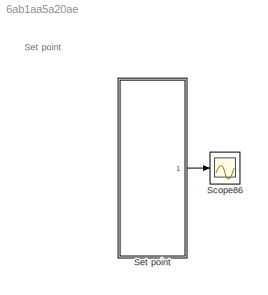
MODEL slx_6ab1aa5a20ae
KIND model
CONFIG AbsTol = auto
CONFIG EnableMultiTasking = off
CONFIG FixedStep = 0.01
CONFIG MaxStep = auto
CONFIG MinStep = auto
CONFIG RelTol = 1e-3
CONFIG SampleTimeConstraint = Unconstrained
CONFIG SolverName = FixedStepAuto
CONFIG StartTime = 0.0
CONFIG StopTime = 15
BLOCK [Scope] Scope86
  Floating = off
  NumInputPorts = 1
  Ports = [1]
  ScopeSpecificationString = Simulink.scopes.TimeScopeBlockCfg('CurrentConfiguration', extmgr.ConfigurationSet(extmgr.Configuration('Core','General UI',true,'FigureColor',[1 1 1]),extmgr.Configuration('Core','Source UI',true),extmgr.Configuration('Sources','WiredSimulink',true,'DataLogging',true,'DataLoggingSaveFormat','StructureWithTime'),extmgr.Configuration('Visuals','Time Domain',true,'SerializedDisplays',{struct('MinYLim...<+2069ch>
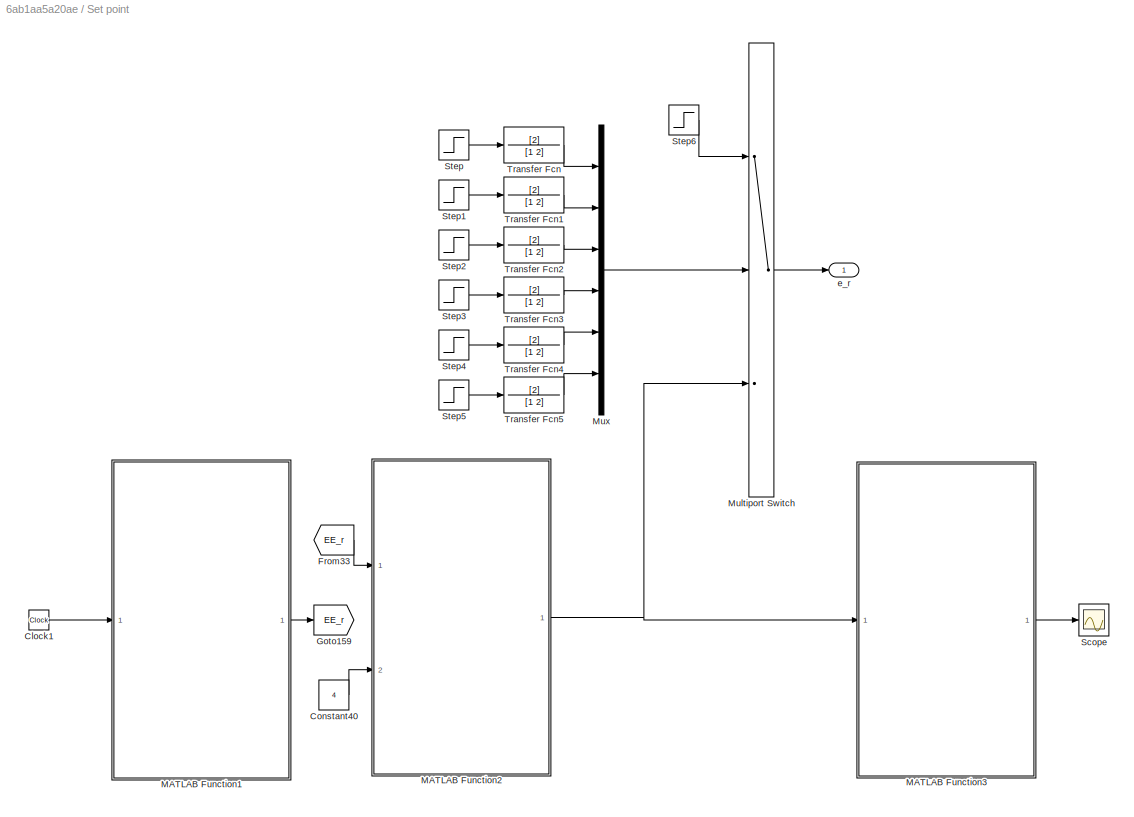
BLOCK [SubSystem] Set point
  Ports = [0, 1]
  RequestExecContextInheritance = off
BLOCK [Clock] Set point/Clock1
BLOCK [Constant] Set point/Constant40
  Value = 4
BLOCK [From] Set point/From33
  GotoTag = EE_r
BLOCK [Goto] Set point/Goto159
  GotoTag = EE_r
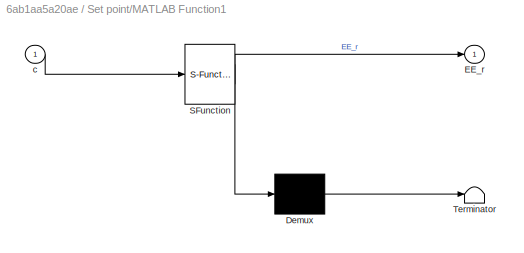
BLOCK [SubSystem] Set point/MATLAB Function1
  ErrorFcn = Stateflow.Translate.translate
  PermitHierarchicalResolution = ExplicitOnly
  Ports = [1, 1]
  RequestExecContextInheritance = off
  SFBlockType = MATLAB Function
  TreatAsAtomicUnit = on
BLOCK [Demux] Set point/MATLAB Function1/ Demux 
  Outputs = 1
  Ports = [1, 1]
BLOCK [S-Function] Set point/MATLAB Function1/ SFunction 
  EnableBusSupport = on
  FunctionName = sf_sfun
  PortCounts = [1 2]
  Ports = [1, 2]
  SFcnIsStateOwnerBlock = off
  SFunctionDeploymentMode = off
  Tag = Stateflow S-Function 18
BLOCK [Terminator] Set point/MATLAB Function1/ Terminator 
BLOCK [Outport] Set point/MATLAB Function1/EE_r
  VectorParamsAs1DForOutWhenUnconnected = off
BLOCK [Inport] Set point/MATLAB Function1/c
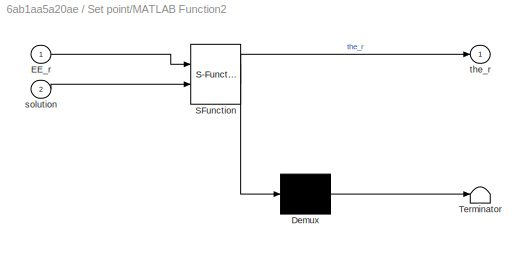
BLOCK [SubSystem] Set point/MATLAB Function2
  ErrorFcn = Stateflow.Translate.translate
  PermitHierarchicalResolution = ExplicitOnly
  Ports = [2, 1]
  RequestExecContextInheritance = off
  SFBlockType = MATLAB Function
  TreatAsAtomicUnit = on
BLOCK [Demux] Set point/MATLAB Function2/ Demux 
  Outputs = 1
  Ports = [1, 1]
BLOCK [S-Function] Set point/MATLAB Function2/ SFunction 
  EnableBusSupport = on
  FunctionName = sf_sfun
  PortCounts = [2 2]
  Ports = [2, 2]
  SFcnIsStateOwnerBlock = off
  SFunctionDeploymentMode = off
  Tag = Stateflow S-Function 20
BLOCK [Terminator] Set point/MATLAB Function2/ Terminator 
BLOCK [Inport] Set point/MATLAB Function2/EE_r
BLOCK [Inport] Set point/MATLAB Function2/solution
  Port = 2
BLOCK [Outport] Set point/MATLAB Function2/the_r
  VectorParamsAs1DForOutWhenUnconnected = off
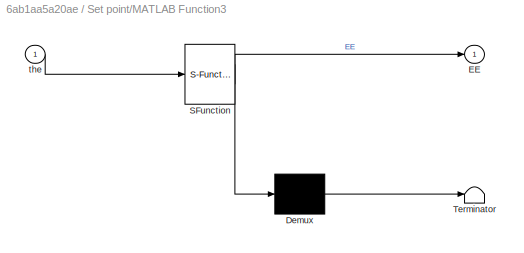
BLOCK [SubSystem] Set point/MATLAB Function3
  ErrorFcn = Stateflow.Translate.translate
  PermitHierarchicalResolution = ExplicitOnly
  Ports = [1, 1]
  RequestExecContextInheritance = off
  SFBlockType = MATLAB Function
  TreatAsAtomicUnit = on
BLOCK [Demux] Set point/MATLAB Function3/ Demux 
  Outputs = 1
  Ports = [1, 1]
BLOCK [S-Function] Set point/MATLAB Function3/ SFunction 
  EnableBusSupport = on
  FunctionName = sf_sfun
  PortCounts = [1 2]
  Ports = [1, 2]
  SFcnIsStateOwnerBlock = off
  SFunctionDeploymentMode = off
  Tag = Stateflow S-Function 21
BLOCK [Terminator] Set point/MATLAB Function3/ Terminator 
BLOCK [Outport] Set point/MATLAB Function3/EE
  VectorParamsAs1DForOutWhenUnconnected = off
BLOCK [Inport] Set point/MATLAB Function3/the
BLOCK [MultiPortSwitch] Set point/Multiport Switch
  InputSameDT = off
  Inputs = 2
  Ports = [3, 1]
  SaturateOnIntegerOverflow = off
BLOCK [Mux] Set point/Mux
  DisplayOption = bar
  Inputs = 6
  Ports = [6, 1]
BLOCK [Scope] Set point/Scope
  Floating = off
  NumInputPorts = 1
  Ports = [1]
  ScopeSpecificationString = Simulink.scopes.TimeScopeBlockCfg('CurrentConfiguration', extmgr.ConfigurationSet(extmgr.Configuration('Core','General UI',true),extmgr.Configuration('Core','Source UI',true),extmgr.Configuration('Sources','WiredSimulink',true,'DataLoggingVariableName','ScopeData1'),extmgr.Configuration('Visuals','Time Domain',true,'SerializedDisplays',{struct('MinYLimReal','-255.625','MaxYLimReal','800.625','YLab...<+1653ch>
BLOCK [Step] Set point/Step
  After = -0.052484081297928
  SampleTime = 0
  Time = 0
BLOCK [Step] Set point/Step1
  After = 0.010485739849624
  SampleTime = 0
  Time = 0
BLOCK [Step] Set point/Step2
  After = 0.105112260434987
  SampleTime = 0
  Time = 0
BLOCK [Step] Set point/Step3
  After = -0.509342931142206
  SampleTime = 0
  Time = 0
BLOCK [Step] Set point/Step4
  After = -0.649990510981055
  SampleTime = 0
  Time = 0
BLOCK [Step] Set point/Step5
  After = -1.591522076129573
  SampleTime = 0
  Time = 0
BLOCK [Step] Set point/Step6
  After = 2
  Before = 1
  SampleTime = 0
  Time = 5
BLOCK [TransferFcn] Set point/Transfer Fcn
  Denominator = [1 2]
  Numerator = [2]
BLOCK [TransferFcn] Set point/Transfer Fcn1
  Denominator = [1 2]
  Numerator = [2]
BLOCK [TransferFcn] Set point/Transfer Fcn2
  Denominator = [1 2]
  Numerator = [2]
BLOCK [TransferFcn] Set point/Transfer Fcn3
  Denominator = [1 2]
  Numerator = [2]
BLOCK [TransferFcn] Set point/Transfer Fcn4
  Denominator = [1 2]
  Numerator = [2]
BLOCK [TransferFcn] Set point/Transfer Fcn5
  Denominator = [1 2]
  Numerator = [2]
BLOCK [Outport] Set point/e_r
  VectorParamsAs1DForOutWhenUnconnected = off
ANNOTATION (root): Set point
LINE Set point/Clock1:1 -> Set point/MATLAB Function1:1
LINE Set point/Constant40:1 -> Set point/MATLAB Function2:2
LINE Set point/From33:1 -> Set point/MATLAB Function2:1
LINE Set point/MATLAB Function1:1 -> Set point/Goto159:1
NET Set point/MATLAB Function2:1 -> Set point/MATLAB Function3:1, Set point/Multiport Switch:3
LINE Set point/MATLAB Function3:1 -> Set point/Scope:1
LINE Set point/Multiport Switch:1 -> Set point/e_r:1
LINE Set point/Mux:1 -> Set point/Multiport Switch:2
LINE Set point/Step1:1 -> Set point/Transfer Fcn1:1
LINE Set point/Step2:1 -> Set point/Transfer Fcn2:1
LINE Set point/Step3:1 -> Set point/Transfer Fcn3:1
LINE Set point/Step4:1 -> Set point/Transfer Fcn4:1
LINE Set point/Step5:1 -> Set point/Transfer Fcn5:1
LINE Set point/Step6:1 -> Set point/Multiport Switch:1
LINE Set point/Step:1 -> Set point/Transfer Fcn:1
LINE Set point/Transfer Fcn1:1 -> Set point/Mux:2
LINE Set point/Transfer Fcn2:1 -> Set point/Mux:3
LINE Set point/Transfer Fcn3:1 -> Set point/Mux:4
LINE Set point/Transfer Fcn4:1 -> Set point/Mux:5
LINE Set point/Transfer Fcn5:1 -> Set point/Mux:6
LINE Set point/Transfer Fcn:1 -> Set point/Mux:1
LINE Set point:1 -> Scope86:1
note: NET lines group one-source signal fan-out (src -> all destinations, sorted); 1:1 wires keep LINE
CHART Set point/MATLAB Function2 states=1 transitions=1
  STATE_LABEL 'eML_blk_kernel()'
  STATE_LABEL 'SCRIPT:\nfunction the_r  = fcn(EE_r,solution)\na1=75; a2=270; a3=90; d1=335; d4=295; d7=80;\nemt = zeros(8,6);\nm = 0;\npx = EE_r(1);\npy = EE_r(2);\npz = EE_r(3);\nroll = EE_r(4);\npitch = EE_r(5);\nyaw =  EE_r(6);\nr11 = cos(yaw)*cos(pitch);\nr21 = sin(yaw)*cos(pitch);\nr31 = -sin(pitch);\nr12 = cos(yaw)*sin(pitch)*sin(roll) - sin(yaw)*cos(roll);\nr22 = sin(yaw)*sin(pitch)*sin(roll) + cos(yaw)*cos(roll);\nr32 =...<+2339ch>'
CHART Set point/MATLAB Function3 states=1 transitions=1
  STATE_LABEL 'eML_blk_kernel()'
  STATE_LABEL 'SCRIPT:\nfunction EE  = FK_6DOF(the)\nthe1 = the(1);\nthe2 = the(2);\nthe3 = the(3);\nthe4 = the(4);\nthe5 = the(5);\nthe6 = the(6);\na1=75; a2=270; a3=90; d1=335; d4=295; d7=80;\n\nT_0_EE = ...\n[ cos(the6)*(cos(the5)*sin(the1)*sin(the4) + cos(the2 + the3)*cos(the1)*sin(the5) + cos(the1)*cos(the2)*cos(the4)*cos(the5)*sin(the3) + cos(the1)*cos(the3)*cos(the4)*cos(the5)*sin(the2)) - sin(the6)*(cos(the1)*cos(t...<+3608ch>'
CHART Set point/MATLAB Function1 states=1 transitions=1
  STATE_LABEL 'eML_blk_kernel()'
  STATE_LABEL "SCRIPT:\nfunction EE_r = TrajectoryPlanning(c)\n% H=ScopeData.signals.values(:,1:3);\nt = c - 5;\nf=0.1; %hz\nPx_r = 450;\nPy_r = 0+50*sin(2*pi*f*t);\nPz_r = 645+50*cos(2*pi*f*t);\nroll_r=pi/3;\npitch_r=pi/6;\nyaw_r=pi/2;\nEE_r = [Px_r,Py_r,Pz_r,roll_r,pitch_r,yaw_r]';"
CHART  states=0 transitions=0
CHART  states=0 transitions=0
CHART  states=0 transitions=0
